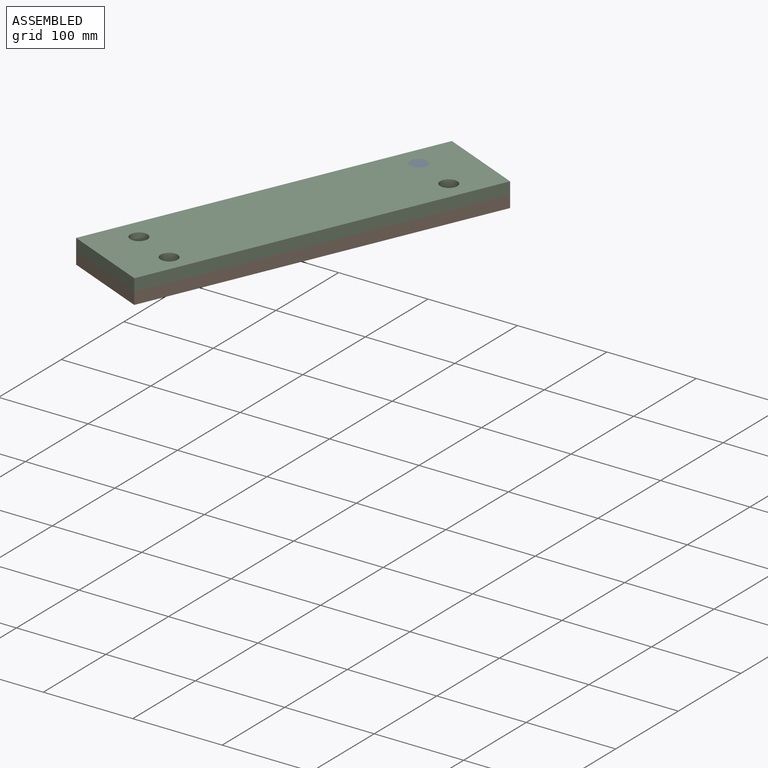
[diagram: assembled view]
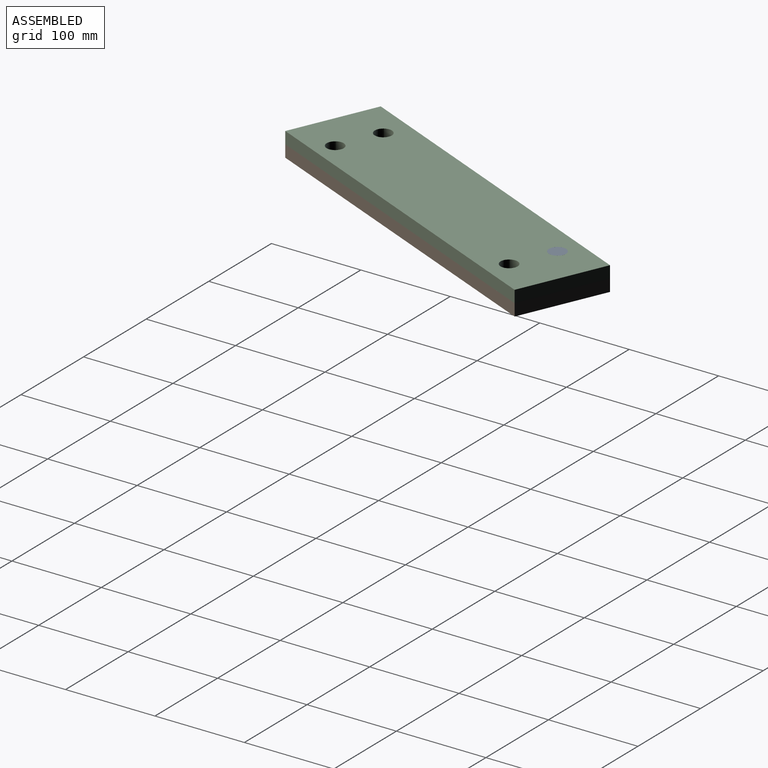
[diagram: assembled view, second angle]
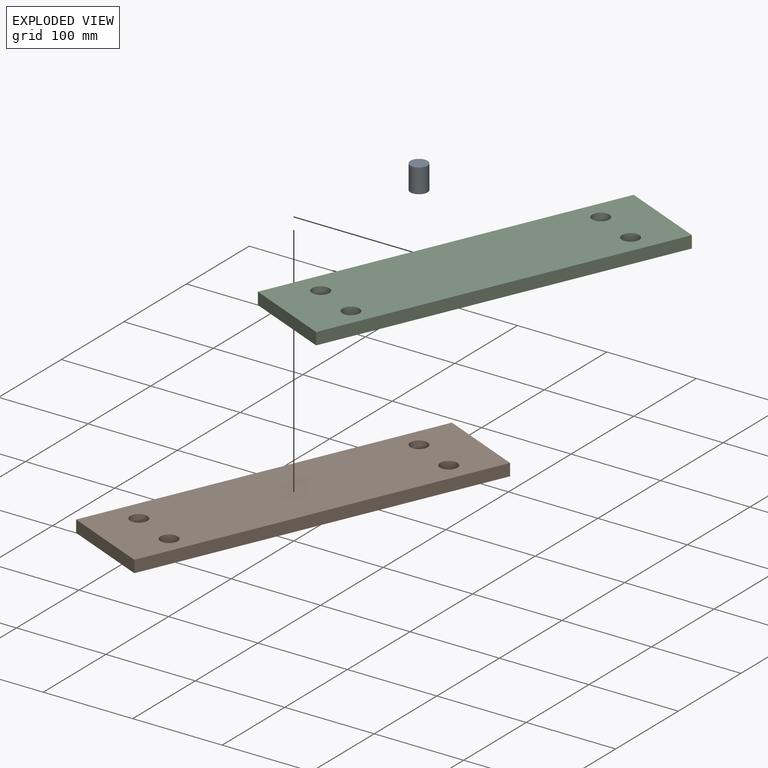
[diagram: exploded view]
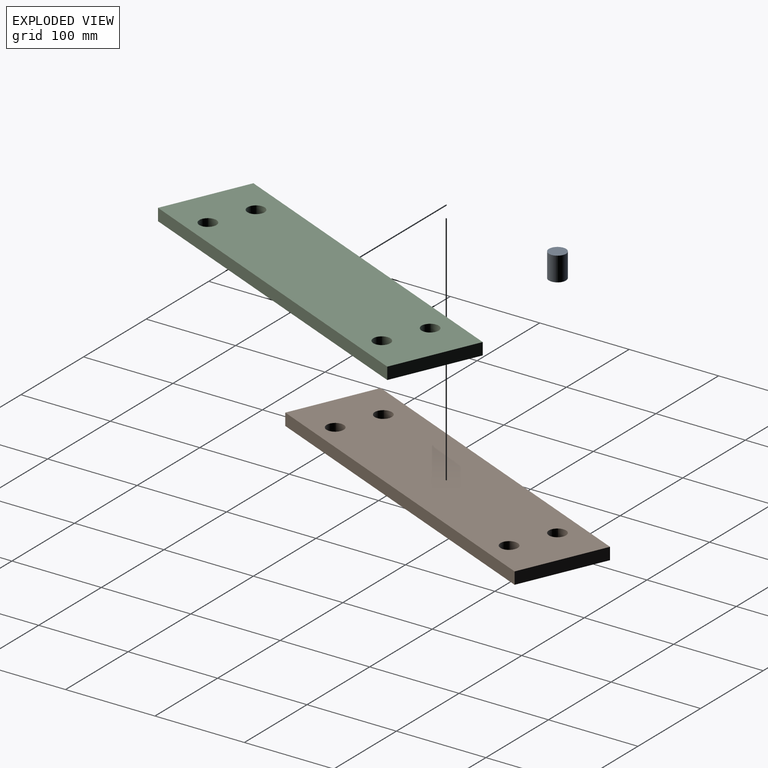
[diagram: exploded view, second angle]
ASSEMBLY  parts=3 mates=3
PART A: 3 faces, bbox 19.1x19.1x27 mm
  f0: plane 19.05x19.05mm, normal (0,0,-1), area 285mm2, adj f1
  f1: cylinder r=9.53mm len=26.99mm, axis (0,0,1), area 1615.1mm2, adj f0,f2
  f2: plane 19.05x19.05mm, normal (0,0,1), area 285mm2, adj f1
PART B: 10 faces, bbox 102.4x13.5x403.2 mm
  f0: plane 403.23x102.39mm, normal (0,-1,0), area 40147.6mm2, adj f2,f3,f4,f5,f6,f7,f8,f9
  f1: plane 403.23x102.39mm, normal (0,1,0), area 40147.6mm2, adj f2,f3,f4,f5,f6,f7,f8,f9
  f2: plane 102.39x13.49mm, normal (0,0,1), area 1381.7mm2, adj f0,f1,f3,f5
  f3: plane 403.23x13.49mm, normal (-1,0,0), area 5441mm2, adj f0,f1,f2,f4
  f4: plane 102.39x13.49mm, normal (0,0,-1), area 1381.7mm2, adj f0,f1,f3,f5
  f5: plane 403.23x13.49mm, normal (1,0,0), area 5441mm2, adj f0,f1,f2,f4
  f6: cylinder r=9.53mm len=19.05mm, axis (0,-1,0), area 807.6mm2, adj f0,f1
  f7: cylinder r=9.53mm len=19.05mm, axis (0,-1,0), area 807.6mm2, adj f0,f1
  f8: cylinder r=9.53mm len=19.05mm, axis (0,-1,0), area 807.6mm2, adj f0,f1
  f9: cylinder r=9.53mm len=19.05mm, axis (0,-1,0), area 807.6mm2, adj f0,f1
PART C: same geometry as B
PLACE A rot(axis=(0,0,-1),23.6deg) t=(0,0,130.06)mm
PLACE B rot(axis=(-0.96,0.2,-0.2),92.4deg) t=(-82.73,-257.94,103.07)mm
PLACE C rot(axis=(-0.96,0.2,-0.2),92.4deg) t=(-82.73,-257.94,116.57)mm
MATE cylindrical A.f1 <-> C.f6  axis (0,0,1) through (0,0,116.57)mm
MATE planar A.f1 <-> C.f0  axis (0,0,1) through (0,0,130.06)mm
MATE fastened B.f0 <-> C.f1  axis (0,0,1) through (-36.81,-148.5,116.57)mm
